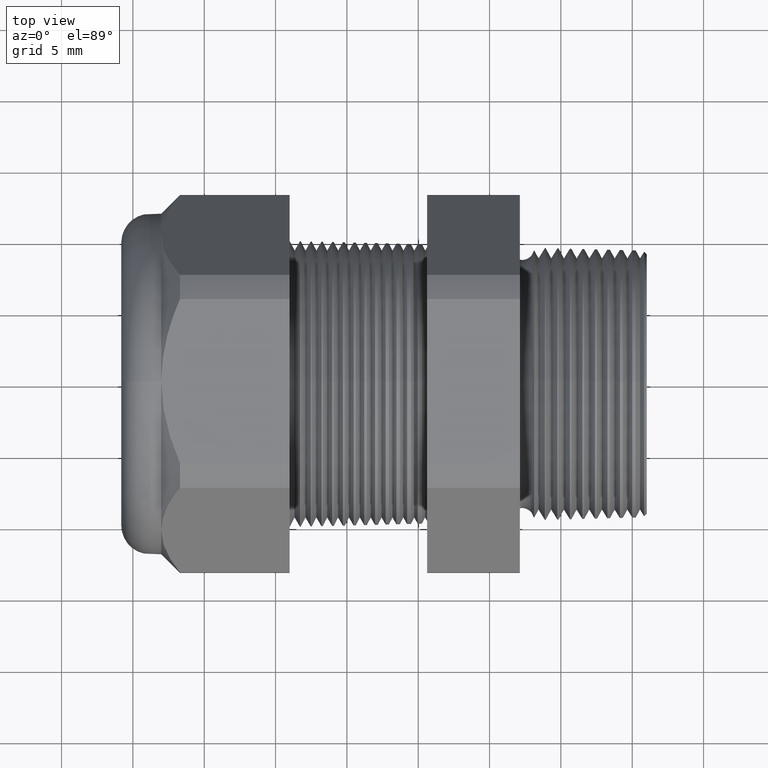
[diagram: clean part render]
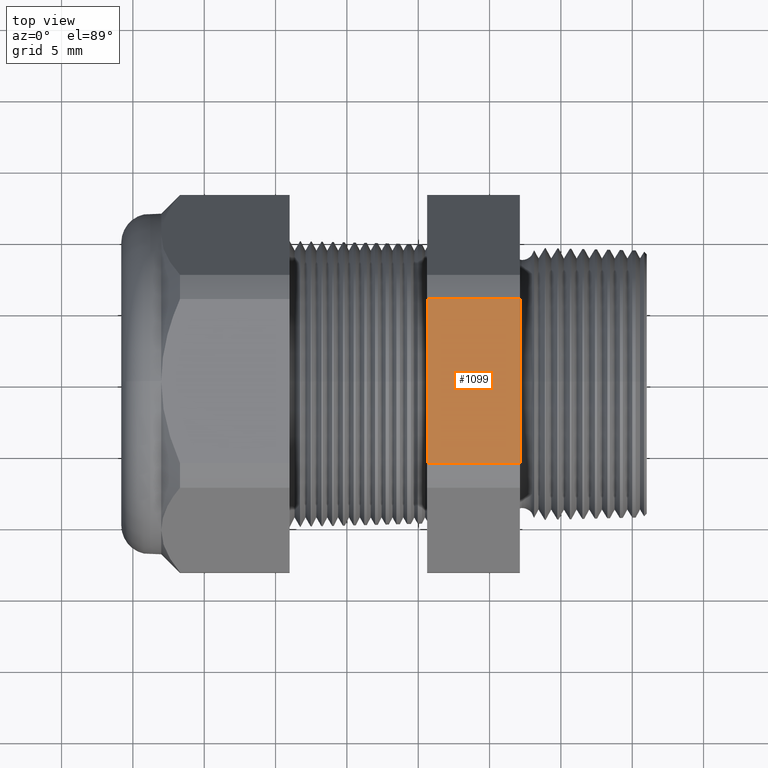
[diagram: same view with one face highlighted and labeled with its STEP entity id]
A machine part, top view. The second image highlights one B-rep face of the part: STEP entity #1099.
In plain terms, the highlighted planar face has unit normal (0, 0, 1).
Its self-contained STEP definition (entity closure, byte-faithful):
#869 = VERTEX_POINT ( 'NONE', #3491 ) ;
#870 = VERTEX_POINT ( 'NONE', #3490 ) ;
#925 = EDGE_CURVE ( 'NONE', #869, #870, #3621, .T. ) ;
#1020 = ORIENTED_EDGE ( 'NONE', *, *, #1041, .F. ) ;
#1021 = ORIENTED_EDGE ( 'NONE', *, *, #925, .F. ) ;
#1022 = ORIENTED_EDGE ( 'NONE', *, *, #1023, .T. ) ;
#1023 = EDGE_CURVE ( 'NONE', #869, #1024, #3778, .T. ) ;
#1024 = VERTEX_POINT ( 'NONE', #3774 ) ;
#1025 = ORIENTED_EDGE ( 'NONE', *, *, #1026, .F. ) ;
#1026 = EDGE_CURVE ( 'NONE', #1042, #1024, #3773, .T. ) ;
#1041 = EDGE_CURVE ( 'NONE', #870, #1042, #3813, .T. ) ;
#1042 = VERTEX_POINT ( 'NONE', #3805 ) ;
#1099 = ADVANCED_FACE ( 'NONE', ( #3909 ), #3908, .T. ) ;
#1100 = EDGE_LOOP ( 'NONE', ( #1020, #1021, #1022, #1025 ) ) ;
#3490 = CARTESIAN_POINT ( 'NONE',  ( -0.3100000000000000000, -0.2264307620443835600, 0.4699999999999997500 ) ) ;
#3491 = CARTESIAN_POINT ( 'NONE',  ( -0.3100000000000000000, 0.2264307620443832800, 0.4699999999999999200 ) ) ;
#3618 = DIRECTION ( 'NONE',  ( 0.0000000000000000000, -1.000000000000000000, 0.0000000000000000000 ) ) ;
#3619 = VECTOR ( 'NONE', #3618, 39.37007874015748100 ) ;
#3620 = CARTESIAN_POINT ( 'NONE',  ( -0.3100000000000000000, 0.9399999999999999500, 0.4699999999999999200 ) ) ;
#3621 = LINE ( 'NONE', #3620, #3619 ) ;
#3770 = DIRECTION ( 'NONE',  ( 0.0000000000000000000, 1.000000000000000000, 0.0000000000000000000 ) ) ;
#3771 = VECTOR ( 'NONE', #3770, 39.37007874015748100 ) ;
#3772 = CARTESIAN_POINT ( 'NONE',  ( -0.5659055118110235500, 0.9399999999999999500, 0.4699999999999999200 ) ) ;
#3773 = LINE ( 'NONE', #3772, #3771 ) ;
#3774 = CARTESIAN_POINT ( 'NONE',  ( -0.5659055118110235500, 0.2264307620443832800, 0.4699999999999999200 ) ) ;
#3775 = DIRECTION ( 'NONE',  ( -1.000000000000000000, 0.0000000000000000000, 0.0000000000000000000 ) ) ;
#3776 = VECTOR ( 'NONE', #3775, 39.37007874015748100 ) ;
#3777 = CARTESIAN_POINT ( 'NONE',  ( 0.04000000000000011900, 0.2264307620443832800, 0.4699999999999999200 ) ) ;
#3778 = LINE ( 'NONE', #3777, #3776 ) ;
#3805 = CARTESIAN_POINT ( 'NONE',  ( -0.5659055118110235500, -0.2264307620443835600, 0.4699999999999997500 ) ) ;
#3806 = DIRECTION ( 'NONE',  ( -1.000000000000000000, 0.0000000000000000000, 0.0000000000000000000 ) ) ;
#3807 = VECTOR ( 'NONE', #3806, 39.37007874015748100 ) ;
#3808 = CARTESIAN_POINT ( 'NONE',  ( 0.04000000000000011900, -0.2264307620443835600, 0.4699999999999997500 ) ) ;
#3813 = LINE ( 'NONE', #3808, #3807 ) ;
#3904 = DIRECTION ( 'NONE',  ( 1.000000000000000000, 0.0000000000000000000, 0.0000000000000000000 ) ) ;
#3905 = DIRECTION ( 'NONE',  ( 0.0000000000000000000, 0.0000000000000000000, 1.000000000000000000 ) ) ;
#3906 = CARTESIAN_POINT ( 'NONE',  ( 0.04000000000000011900, -0.2264307620443832800, 0.4699999999999999200 ) ) ;
#3907 = AXIS2_PLACEMENT_3D ( 'NONE', #3906, #3905, #3904 ) ;
#3908 = PLANE ( 'NONE',  #3907 ) ;
#3909 = FACE_OUTER_BOUND ( 'NONE', #1100, .T. ) ;